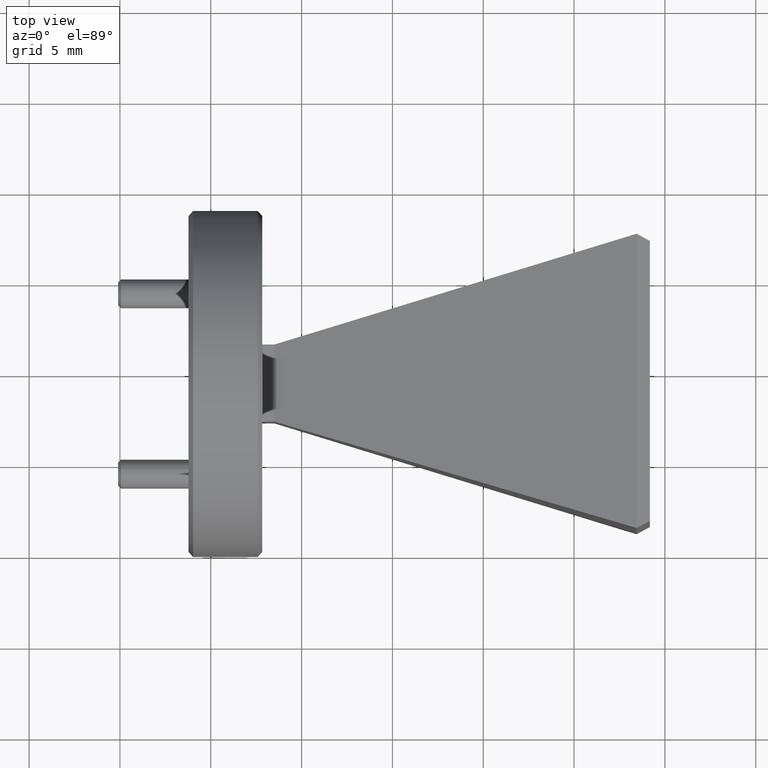
[diagram: clean part render]
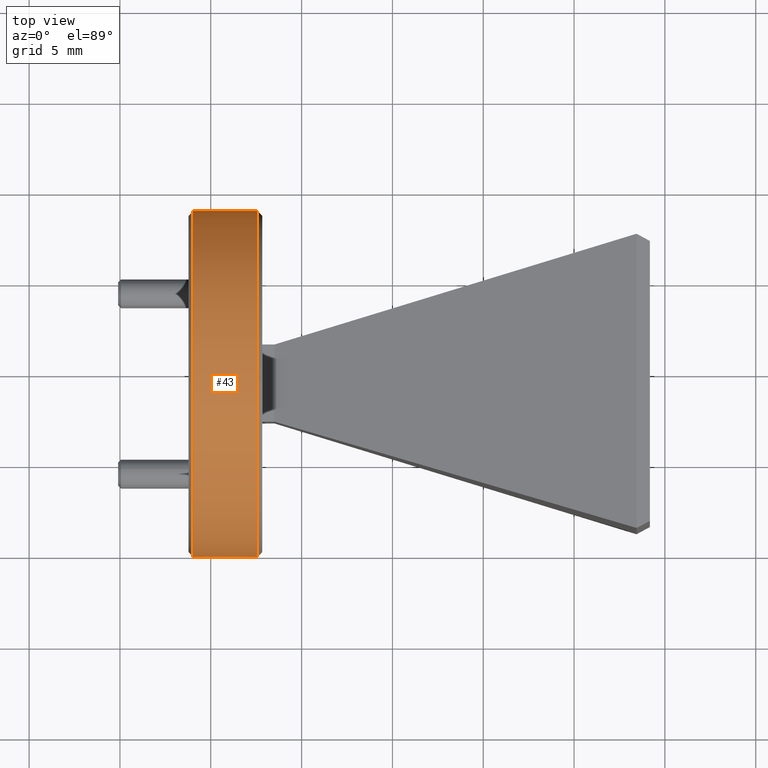
[diagram: same view with one face highlighted and labeled with its STEP entity id]
A machine part, top view. The second image highlights one B-rep face of the part: STEP entity #43.
In plain terms, the highlighted cylindrical surface (partial cylindrical patch) has radius 9.525 mm, axis along (1, 0, -0).
Its self-contained STEP definition (entity closure, byte-faithful):
#26 = DIRECTION ( 'NONE',  ( 1.000000000000000000, -0.000000000000000000, -0.000000000000000000 ) ) ;
#41 = VERTEX_POINT ( 'NONE', #924 ) ;
#43 = ADVANCED_FACE ( 'NONE', ( #950 ), #1167, .T. ) ;
#59 = DIRECTION ( 'NONE',  ( 0.000000000000000000, 0.000000000000000000, 1.000000000000000000 ) ) ;
#110 = CIRCLE ( 'NONE', #1562, 0.3750000000000000555 ) ;
#132 = DIRECTION ( 'NONE',  ( 1.000000000000000000, 8.537024980200825762E-16, -0.000000000000000000 ) ) ;
#254 = CIRCLE ( 'NONE', #2128, 0.3749999999999999445 ) ;
#260 = DIRECTION ( 'NONE',  ( 1.000000000000000000, -0.000000000000000000, -0.000000000000000000 ) ) ;
#341 = DIRECTION ( 'NONE',  ( -1.000000000000000000, 0.000000000000000000, 0.000000000000000000 ) ) ;
#365 = ORIENTED_EDGE ( 'NONE', *, *, #1744, .T. ) ;
#389 = DIRECTION ( 'NONE',  ( 1.000000000000000000, 8.537024980200824776E-16, -0.000000000000000000 ) ) ;
#450 = EDGE_CURVE ( 'NONE', #2112, #1218, #110, .T. ) ;
#454 = CARTESIAN_POINT ( 'NONE',  ( -2.203673718292400441, 0.1738685945160724777, 1.161157469402106068 ) ) ;
#496 = CARTESIAN_POINT ( 'NONE',  ( -2.063673718292400761, 0.5488685945160726165, 0.7861574694021060683 ) ) ;
#578 = EDGE_CURVE ( 'NONE', #41, #1685, #254, .T. ) ;
#615 = ORIENTED_EDGE ( 'NONE', *, *, #450, .T. ) ;
#629 = LINE ( 'NONE', #1827, #1317 ) ;
#665 = CARTESIAN_POINT ( 'NONE',  ( -2.203673718292400441, 0.1738685945160724500, 0.7861574694021060683 ) ) ;
#706 = CARTESIAN_POINT ( 'NONE',  ( -2.063673718292400761, -0.2011314054839274390, 0.7861574694021060683 ) ) ;
#803 = AXIS2_PLACEMENT_3D ( 'NONE', #1289, #2083, #1664 ) ;
#853 = DIRECTION ( 'NONE',  ( 0.000000000000000000, 0.000000000000000000, 1.000000000000000000 ) ) ;
#884 = AXIS2_PLACEMENT_3D ( 'NONE', #665, #260, #59 ) ;
#924 = CARTESIAN_POINT ( 'NONE',  ( -2.203673718292400441, 0.5488685945160725055, 0.7861574694021060683 ) ) ;
#934 = VERTEX_POINT ( 'NONE', #706 ) ;
#950 = FACE_OUTER_BOUND ( 'NONE', #2043, .T. ) ;
#968 = CIRCLE ( 'NONE', #884, 0.3749999999999999445 ) ;
#981 = VERTEX_POINT ( 'NONE', #2616 ) ;
#995 = CARTESIAN_POINT ( 'NONE',  ( -2.063673718292400761, 0.1738685945160725888, 0.7861574694021060683 ) ) ;
#1079 = CARTESIAN_POINT ( 'NONE',  ( -2.053673718292400530, -0.2011314054839274390, 0.7861574694021060683 ) ) ;
#1161 = EDGE_CURVE ( 'NONE', #41, #1218, #629, .T. ) ;
#1167 = CYLINDRICAL_SURFACE ( 'NONE', #1322, 0.3750000000000000555 ) ;
#1217 = DIRECTION ( 'NONE',  ( 0.000000000000000000, 0.000000000000000000, -1.000000000000000000 ) ) ;
#1218 = VERTEX_POINT ( 'NONE', #496 ) ;
#1289 = CARTESIAN_POINT ( 'NONE',  ( -2.063673718292400761, 0.1738685945160725888, 0.7861574694021060683 ) ) ;
#1317 = VECTOR ( 'NONE', #389, 39.37007874015748143 ) ;
#1322 = AXIS2_PLACEMENT_3D ( 'NONE', #1967, #132, #1341 ) ;
#1326 = ORIENTED_EDGE ( 'NONE', *, *, #1699, .T. ) ;
#1341 = DIRECTION ( 'NONE',  ( -7.284927983104700930E-16, 1.000000000000000000, 0.000000000000000000 ) ) ;
#1458 = ORIENTED_EDGE ( 'NONE', *, *, #1935, .T. ) ;
#1562 = AXIS2_PLACEMENT_3D ( 'NONE', #995, #341, #1217 ) ;
#1595 = ORIENTED_EDGE ( 'NONE', *, *, #1161, .F. ) ;
#1664 = DIRECTION ( 'NONE',  ( 0.000000000000000000, 9.106159978880875423E-16, -1.000000000000000000 ) ) ;
#1685 = VERTEX_POINT ( 'NONE', #454 ) ;
#1699 = EDGE_CURVE ( 'NONE', #934, #2112, #2513, .T. ) ;
#1744 = EDGE_CURVE ( 'NONE', #981, #934, #2302, .T. ) ;
#1820 = VECTOR ( 'NONE', #1879, 39.37007874015748143 ) ;
#1827 = CARTESIAN_POINT ( 'NONE',  ( -2.053673718292400974, 0.5488685945160726165, 0.7861574694021060683 ) ) ;
#1879 = DIRECTION ( 'NONE',  ( 1.000000000000000000, 8.537024980200824776E-16, -0.000000000000000000 ) ) ;
#1887 = CARTESIAN_POINT ( 'NONE',  ( -2.203673718292400441, 0.1738685945160724500, 0.7861574694021060683 ) ) ;
#1935 = EDGE_CURVE ( 'NONE', #1685, #981, #968, .T. ) ;
#1936 = ORIENTED_EDGE ( 'NONE', *, *, #578, .T. ) ;
#1967 = CARTESIAN_POINT ( 'NONE',  ( -2.053673718292400530, 0.1738685945160725888, 0.7861574694021060683 ) ) ;
#2043 = EDGE_LOOP ( 'NONE', ( #1936, #1458, #365, #1326, #615, #1595 ) ) ;
#2083 = DIRECTION ( 'NONE',  ( -1.000000000000000000, 0.000000000000000000, 0.000000000000000000 ) ) ;
#2112 = VERTEX_POINT ( 'NONE', #2225 ) ;
#2128 = AXIS2_PLACEMENT_3D ( 'NONE', #1887, #26, #853 ) ;
#2225 = CARTESIAN_POINT ( 'NONE',  ( -2.063673718292400761, 0.1738685945160725888, 1.161157469402106068 ) ) ;
#2302 = LINE ( 'NONE', #1079, #1820 ) ;
#2513 = CIRCLE ( 'NONE', #803, 0.3750000000000000555 ) ;
#2616 = CARTESIAN_POINT ( 'NONE',  ( -2.203673718292400441, -0.2011314054839275778, 0.7861574694021060683 ) ) ;